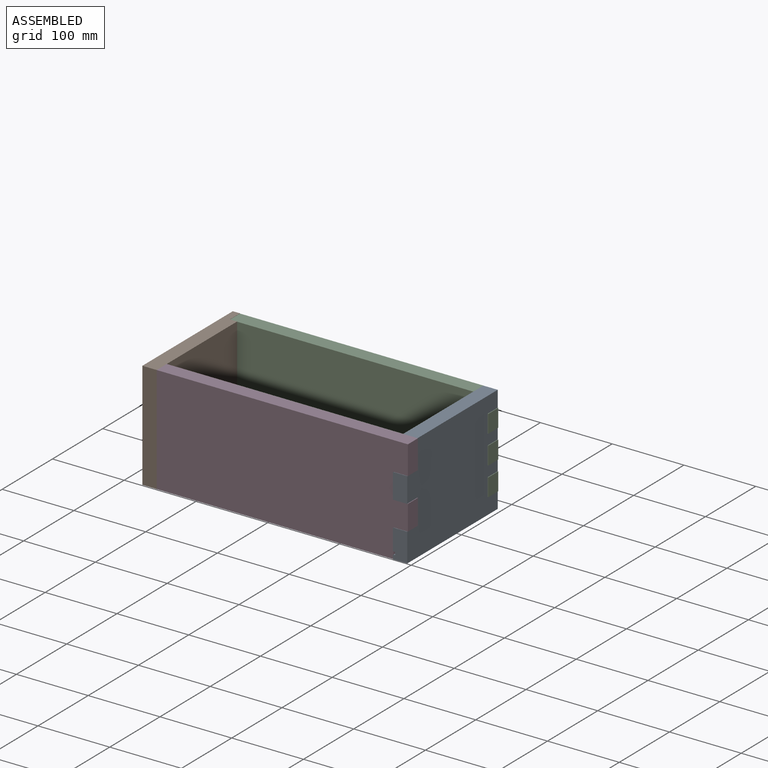
[diagram: assembled view]
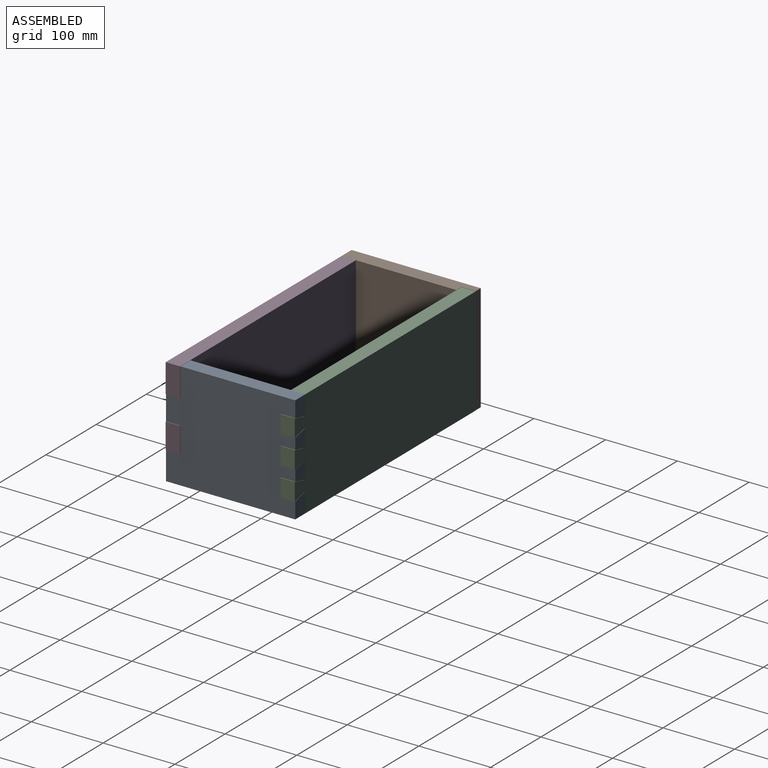
[diagram: assembled view, second angle]
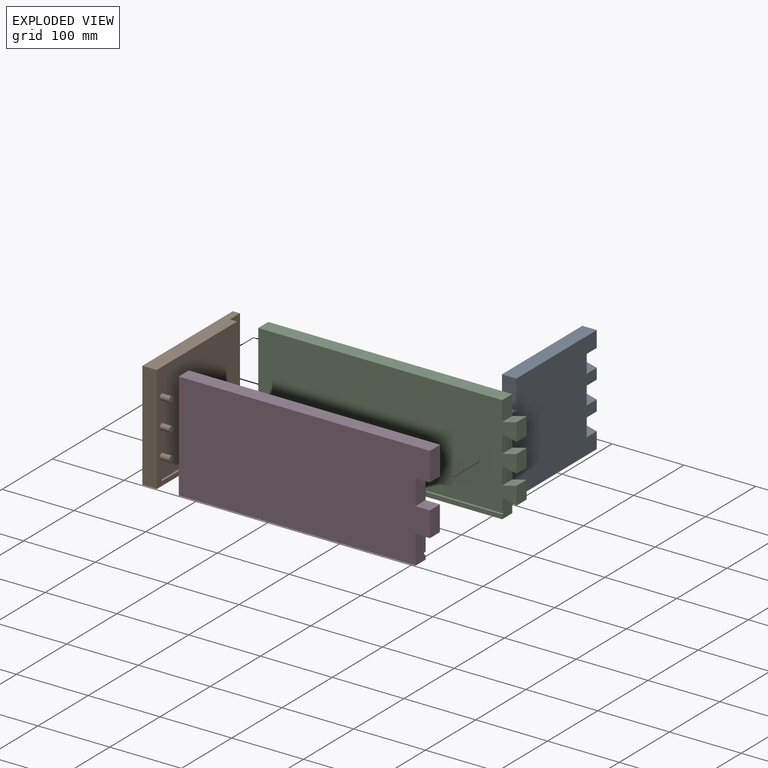
[diagram: exploded view]
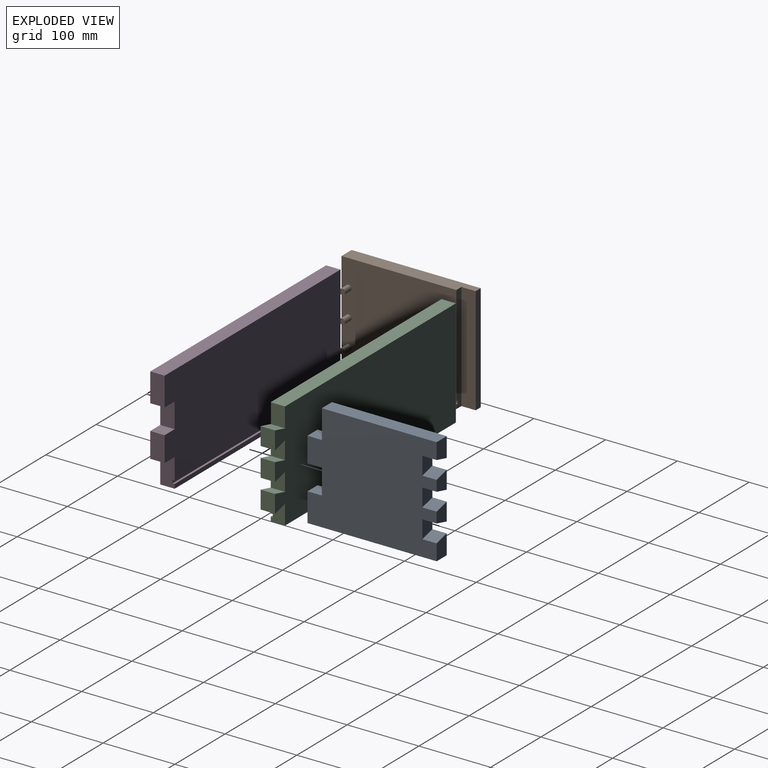
[diagram: exploded view, second angle]
ASSEMBLY  parts=4 mates=3
PART A: 28 faces, bbox 20x180x150 mm
  f0: plane 170x4mm, normal (-1,0,0), area 680mm2, adj f1,f25,f26,f27
  f1: plane 40x20mm, normal (0,-1,0), area 788mm2, adj f0,f5,f9,f10,f15,f25,f26
  f2: plane 25x20mm, normal (0,1,0), area 400mm2, adj f5,f15,f19,f23
  f3: plane 25x20mm, normal (0,1,0), area 400mm2, adj f5,f15,f17,f20
  f4: plane 27.5x20mm, normal (0,1,0), area 500mm2, adj f5,f10,f15,f16
  f5: plane 180x150mm, normal (1,0,0), area 24000mm2, adj f1,f2,f3,f4,f6,f7,f8,f9
  f6: plane 35x20mm, normal (0,-1,0), area 700mm2, adj f5,f7,f14,f15
  f7: plane 20x20mm, normal (0,0,-1), area 400mm2, adj f5,f6,f8,f15
  f8: plane 35x20mm, normal (0,-1,0), area 700mm2, adj f5,f7,f9,f15
  f9: plane 20x20mm, normal (0,0,1), area 400mm2, adj f1,f5,f8,f15
  f10: plane 180x20mm, normal (0,0,-1), area 3600mm2, adj f1,f4,f5,f15
  f11: plane 27.5x20mm, normal (0,1,0), area 500mm2, adj f5,f12,f15,f22
  f12: plane 160x20mm, normal (0,0,1), area 3200mm2, adj f5,f11,f13,f15
  f13: plane 40x20mm, normal (0,-1,0), area 800mm2, adj f5,f12,f14,f15
  f14: plane 20x20mm, normal (0,0,1), area 400mm2, adj f5,f6,f13,f15
  f15: plane 180x150mm, normal (-1,0,0), area 23920mm2, adj f1,f2,f3,f4,f6,f7,f8,f9
  f16: plane 20x20mm, normal (0.24,0,0.97), area 412.3mm2, adj f4,f5,f15,f18
  f17: plane 20x20mm, normal (0.24,0,-0.97), area 412.3mm2, adj f3,f5,f15,f18
  f18: plane 25x20mm, normal (0,1,0), area 400mm2, adj f5,f15,f16,f17
  f19: plane 20x20mm, normal (0.24,0,-0.97), area 412.3mm2, adj f2,f5,f15,f21
  f20: plane 20x20mm, normal (0.24,0,0.97), area 412.3mm2, adj f3,f5,f15,f21
  f21: plane 25x20mm, normal (0,1,0), area 400mm2, adj f5,f15,f19,f20
  f22: plane 20x20mm, normal (0.24,0,-0.97), area 412.3mm2, adj f5,f11,f15,f24
  f23: plane 20x20mm, normal (0.24,0,0.97), area 412.3mm2, adj f2,f5,f15,f24
  f24: plane 25x20mm, normal (0,1,0), area 400mm2, adj f5,f15,f22,f23
  f25: plane 170x3mm, normal (0,0,-1), area 510mm2, adj f0,f1,f15,f27
  f26: plane 170x3mm, normal (0,0,1), area 510mm2, adj f0,f1,f15,f27
  f27: plane 4x3mm, normal (0,-1,0), area 12mm2, adj f0,f15,f25,f26
PART B: 18 faces, bbox 180x33x150 mm
  f0: plane 150x10mm, normal (-1,0,0), area 1488mm2, adj f2,f3,f4,f7,f14,f16,f17
  f1: plane 150x10mm, normal (-1,0,0), area 1500mm2, adj f2,f3,f6,f7
  f2: plane 180x20mm, normal (0,0,-1), area 3400mm2, adj f0,f1,f4,f5,f6,f7
  f3: plane 180x20mm, normal (0,0,1), area 3400mm2, adj f0,f1,f4,f5,f6,f7
  f4: plane 160x150mm, normal (0,-1,0), area 23249.2mm2, adj f0,f2,f3,f5,f8,f10,f12,f14
  f5: plane 150x20mm, normal (1,0,0), area 3000mm2, adj f2,f3,f4,f6
  f6: plane 180x150mm, normal (0,1,0), area 27000mm2, adj f1,f2,f3,f5
  f7: plane 150x20mm, normal (0,-1,0), area 3000mm2, adj f0,f1,f2,f3
  f8: cylinder r=4mm len=13mm, axis (0,1,0), area 326.7mm2, adj f4,f9
  f9: plane 8x8mm, normal (0,-1,0), area 50.3mm2, adj f8
  f10: cylinder r=4mm len=13mm, axis (0,1,0), area 326.7mm2, adj f4,f11
  f11: plane 8x8mm, normal (0,-1,0), area 50.3mm2, adj f10
  f12: cylinder r=4mm len=13mm, axis (0,1,0), area 326.7mm2, adj f4,f13
  f13: plane 8x8mm, normal (0,-1,0), area 50.3mm2, adj f12
  f14: plane 150x3mm, normal (0,0,1), area 450mm2, adj f0,f4,f15,f17
  f15: plane 4x3mm, normal (-1,0,0), area 12mm2, adj f4,f14,f16,f17
  f16: plane 150x3mm, normal (0,0,-1), area 450mm2, adj f0,f4,f15,f17
  f17: plane 150x4mm, normal (0,-1,0), area 600mm2, adj f0,f14,f15,f16
PART C: 22 faces, bbox 360x20x150 mm
  f0: plane 360x140mm, normal (0,-1,0), area 48800mm2, adj f1,f2,f3,f6,f8,f9,f10,f11
  f1: plane 25x20mm, normal (1,0,0), area 500mm2, adj f0,f5,f9,f18
  f2: plane 25x20mm, normal (1,0,0), area 500mm2, adj f0,f5,f14,f16
  f3: plane 25x20mm, normal (1,0,0), area 500mm2, adj f0,f5,f11,f12
  f4: plane 340x6mm, normal (0,-1,0), area 2040mm2, adj f6,f7,f15,f20
  f5: plane 360x150mm, normal (0,1,0), area 52200mm2, adj f1,f2,f3,f6,f7,f8,f9,f10
  f6: plane 150x20mm, normal (-1,0,0), area 2988mm2, adj f0,f4,f5,f7,f8,f19,f20,f21
  f7: plane 340x20mm, normal (0,0,-1), area 6800mm2, adj f4,f5,f6,f15
  f8: plane 340x20mm, normal (0,0,1), area 6800mm2, adj f0,f5,f6,f17
  f9: plane 20x20mm, normal (-0.24,0,-0.97), area 412.3mm2, adj f0,f1,f5,f10
  f10: plane 25x20mm, normal (1,0,0), area 500mm2, adj f0,f5,f9,f11
  f11: plane 20x20mm, normal (-0.24,0,0.97), area 412.3mm2, adj f0,f3,f5,f10
  f12: plane 20x20mm, normal (-0.24,0,-0.97), area 412.3mm2, adj f0,f3,f5,f13
  f13: plane 25x20mm, normal (1,0,0), area 500mm2, adj f0,f5,f12,f14
  f14: plane 20x20mm, normal (-0.24,0,0.97), area 412.3mm2, adj f0,f2,f5,f13
  f15: plane 27.5x20mm, normal (1,0,0), area 538mm2, adj f0,f4,f5,f7,f16,f19,f20,f21
  f16: plane 20x20mm, normal (-0.24,0,-0.97), area 412.3mm2, adj f0,f2,f5,f15
  f17: plane 27.5x20mm, normal (1,0,0), area 550mm2, adj f0,f5,f8,f18
  f18: plane 20x20mm, normal (-0.24,0,0.97), area 412.3mm2, adj f0,f1,f5,f17
  f19: plane 340x3mm, normal (0,0,-1), area 1020mm2, adj f0,f6,f15,f21
  f20: plane 340x3mm, normal (0,0,1), area 1020mm2, adj f4,f6,f15,f21
  f21: plane 340x4mm, normal (0,-1,0), area 1360mm2, adj f6,f15,f19,f20
PART D: 22 faces, bbox 350x20x150 mm
  f0: plane 350x140mm, normal (0,1,0), area 47700mm2, adj f1,f2,f3,f4,f5,f6,f8,f9
  f1: plane 150x20mm, normal (-1,0,0), area 2837.2mm2, adj f0,f6,f7,f11,f12,f13,f15,f17
  f2: plane 40x20mm, normal (1,0,0), area 788mm2, adj f0,f7,f8,f11,f12,f19,f20,f21
  f3: plane 35x20mm, normal (1,0,0), area 700mm2, adj f0,f4,f10,f11
  f4: plane 20x20mm, normal (0,0,-1), area 400mm2, adj f0,f3,f5,f11
  f5: plane 40x20mm, normal (1,0,0), area 800mm2, adj f0,f4,f6,f11
  f6: plane 350x20mm, normal (0,0,1), area 7000mm2, adj f0,f1,f5,f11
  f7: plane 330x20mm, normal (0,0,-1), area 6600mm2, adj f1,f2,f11,f12
  f8: plane 20x20mm, normal (0,0,-1), area 400mm2, adj f0,f2,f9,f11
  f9: plane 35x20mm, normal (1,0,0), area 700mm2, adj f0,f8,f10,f11
  f10: plane 20x20mm, normal (0,0,1), area 400mm2, adj f0,f3,f9,f11
  f11: plane 350x150mm, normal (0,-1,0), area 51000mm2, adj f1,f2,f3,f4,f5,f6,f7,f8
  f12: plane 330x6mm, normal (0,1,0), area 1980mm2, adj f1,f2,f7,f20
  f13: cylinder r=4mm len=13mm, axis (-1,0,0), area 326.7mm2, adj f1,f14
  f14: plane 8x8mm, normal (-1,0,0), area 50.3mm2, adj f13
  f15: cylinder r=4mm len=13mm, axis (-1,0,0), area 326.7mm2, adj f1,f16
  f16: plane 8x8mm, normal (-1,0,0), area 50.3mm2, adj f15
  f17: cylinder r=4mm len=13mm, axis (-1,0,0), area 326.7mm2, adj f1,f18
  f18: plane 8x8mm, normal (-1,0,0), area 50.3mm2, adj f17
  f19: plane 330x3mm, normal (0,0,-1), area 990mm2, adj f0,f1,f2,f21
  f20: plane 330x3mm, normal (0,0,1), area 990mm2, adj f1,f2,f12,f21
  f21: plane 330x4mm, normal (0,1,0), area 1320mm2, adj f1,f2,f19,f20
PLACE A t=(140.57,-179.9,-130.17)mm
PLACE B rot(axis=(0.71,-0.71,0),180deg) t=(-208.6,-86.05,-34.96)mm
PLACE C t=(-10.83,0.1,-0.45)mm
PLACE D t=(161.4,-159.87,-129.9)mm
MATE fastened A.f18 <-> C.f0  axis (0,1,0) through (151.4,-19.9,-95.17)mm
MATE revolute B.f12 <-> D.f15  axis (1,0,0) through (-175.6,-169.87,-54.9)mm
MATE fastened C.f6 <-> B.f7  axis (-1,0,0) through (-198.6,-9.87,-54.9)mm
